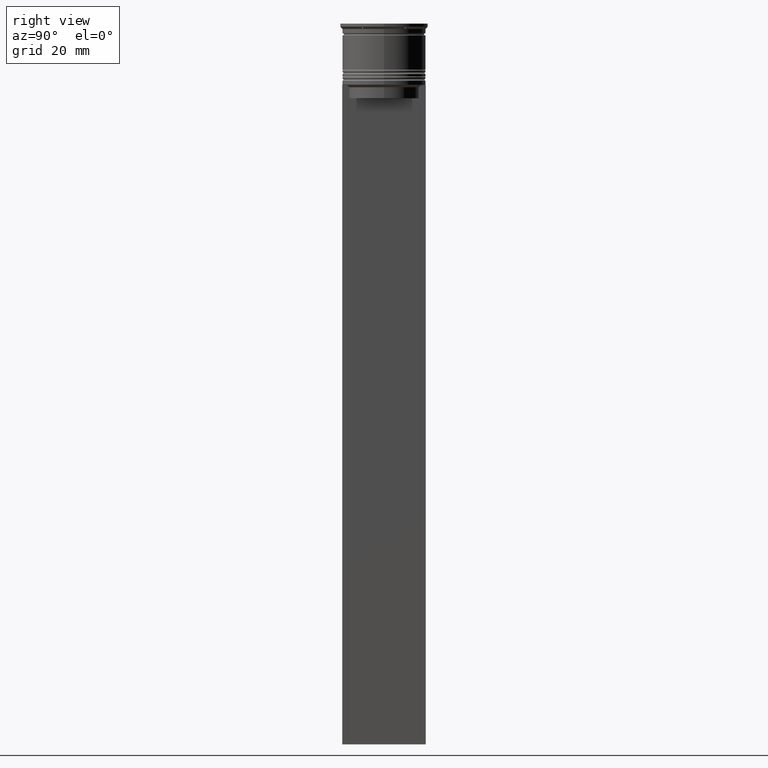
[diagram: clean part render]
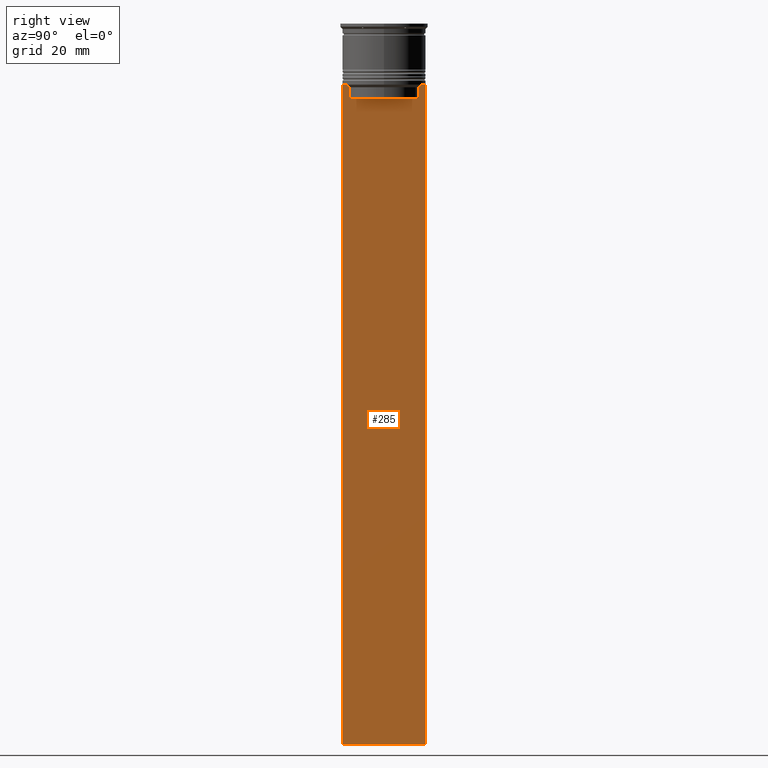
[diagram: same view with one face highlighted and labeled with its STEP entity id]
A machine part, right view. The second image highlights one B-rep face of the part: STEP entity #285.
In plain terms, the highlighted planar face has unit normal (-1, 0, 0).
Its self-contained STEP definition (entity closure, byte-faithful):
#47 = VERTEX_POINT ( 'NONE', #101 ) ;
#52 = CARTESIAN_POINT ( 'NONE',  ( 0.5000000000000000000, 9.499999999999998224, -14.00000000000000178 ) ) ;
#101 = CARTESIAN_POINT ( 'NONE',  ( 0.5000000000000000000, -8.385105843100605583, -14.00000000000000178 ) ) ;
#106 = AXIS2_PLACEMENT_3D ( 'NONE', #2226, #374, #180 ) ;
#124 = VERTEX_POINT ( 'NONE', #1781 ) ;
#174 = CARTESIAN_POINT ( 'NONE',  ( 0.5000000000000000000, 8.051152811434374001, -14.33334332653219079 ) ) ;
#180 = DIRECTION ( 'NONE',  ( 0.000000000000000000, 0.000000000000000000, 1.000000000000000000 ) ) ;
#181 = CARTESIAN_POINT ( 'NONE',  ( 0.5000000000000000000, -7.884161337770803080, -14.50000000000000000 ) ) ;
#191 = VECTOR ( 'NONE', #2163, 1000.000000000000000 ) ;
#221 = DIRECTION ( 'NONE',  ( 0.000000000000000000, 1.000000000000000000, 0.000000000000000000 ) ) ;
#285 = ADVANCED_FACE ( 'NONE', ( #1435 ), #2669, .F. ) ;
#300 = DIRECTION ( 'NONE',  ( -0.000000000000000000, -0.000000000000000000, 1.000000000000000000 ) ) ;
#314 = ORIENTED_EDGE ( 'NONE', *, *, #1823, .T. ) ;
#357 = B_SPLINE_CURVE_WITH_KNOTS ( 'NONE', 3,
 ( #181, #1024, #2281, #2461 ),
 .UNSPECIFIED., .F., .F.,
 ( 4, 4 ),
 ( 0.03673372442973153046, 0.03744389749832059688 ),
 .UNSPECIFIED. ) ;
#374 = DIRECTION ( 'NONE',  ( -1.000000000000000000, 0.000000000000000000, 0.000000000000000000 ) ) ;
#394 = ORIENTED_EDGE ( 'NONE', *, *, #1654, .T. ) ;
#416 = VECTOR ( 'NONE', #2347, 1000.000000000000000 ) ;
#422 = EDGE_LOOP ( 'NONE', ( #564, #2493, #858, #394, #314, #2152, #2313, #1434, #1390, #1732, #1136, #509 ) ) ;
#462 = LINE ( 'NONE', #1515, #1022 ) ;
#472 = CARTESIAN_POINT ( 'NONE',  ( 0.5000000000000000000, 7.884161337770803080, -17.00000000000000000 ) ) ;
#509 = ORIENTED_EDGE ( 'NONE', *, *, #1011, .T. ) ;
#553 = CARTESIAN_POINT ( 'NONE',  ( 0.5000000000000000000, -9.386692708297204035, -14.00000000000000178 ) ) ;
#564 = ORIENTED_EDGE ( 'NONE', *, *, #1604, .T. ) ;
#612 = DIRECTION ( 'NONE',  ( 0.000000000000000000, -1.000000000000000000, 0.000000000000000000 ) ) ;
#636 = CARTESIAN_POINT ( 'NONE',  ( 0.5000000000000000000, 8.385105843100605583, -14.00000000000000178 ) ) ;
#648 = CARTESIAN_POINT ( 'NONE',  ( 0.5000000000000000000, 7.884161337770803080, -14.50000000000000000 ) ) ;
#682 = VECTOR ( 'NONE', #1304, 1000.000000000000000 ) ;
#720 = B_SPLINE_CURVE_WITH_KNOTS ( 'NONE', 3,
 ( #636, #1661, #174, #648 ),
 .UNSPECIFIED., .F., .F.,
 ( 4, 4 ),
 ( 0.01426761478740281447, 0.01497538974438914448 ),
 .UNSPECIFIED. ) ;
#759 = EDGE_CURVE ( 'NONE', #2045, #940, #2555, .T. ) ;
#830 = VERTEX_POINT ( 'NONE', #52 ) ;
#858 = ORIENTED_EDGE ( 'NONE', *, *, #2661, .T. ) ;
#871 = DIRECTION ( 'NONE',  ( 0.000000000000000000, -1.000000000000000000, 0.000000000000000000 ) ) ;
#884 = VERTEX_POINT ( 'NONE', #2609 ) ;
#935 = VERTEX_POINT ( 'NONE', #936 ) ;
#936 = CARTESIAN_POINT ( 'NONE',  ( 0.5000000000000000000, 9.499999999999998224, -163.9999999999999716 ) ) ;
#940 = VERTEX_POINT ( 'NONE', #2427 ) ;
#1011 = EDGE_CURVE ( 'NONE', #830, #2541, #1254, .T. ) ;
#1022 = VECTOR ( 'NONE', #871, 1000.000000000000000 ) ;
#1024 = CARTESIAN_POINT ( 'NONE',  ( 0.5000000000000000000, -8.051152795888546265, -14.33334334204685057 ) ) ;
#1041 = EDGE_CURVE ( 'NONE', #124, #1100, #720, .T. ) ;
#1076 = DIRECTION ( 'NONE',  ( 0.000000000000000000, -1.000000000000000000, 0.000000000000000000 ) ) ;
#1100 = VERTEX_POINT ( 'NONE', #1620 ) ;
#1136 = ORIENTED_EDGE ( 'NONE', *, *, #1571, .F. ) ;
#1192 = LINE ( 'NONE', #1982, #2150 ) ;
#1193 = VERTEX_POINT ( 'NONE', #472 ) ;
#1224 = LINE ( 'NONE', #2498, #2325 ) ;
#1254 = LINE ( 'NONE', #2487, #1366 ) ;
#1285 = CARTESIAN_POINT ( 'NONE',  ( 0.5000000000000000000, -9.500000000000001776, -14.00000000000000178 ) ) ;
#1304 = DIRECTION ( 'NONE',  ( 0.000000000000000000, -1.000000000000000000, 0.000000000000000000 ) ) ;
#1366 = VECTOR ( 'NONE', #612, 1000.000000000000000 ) ;
#1390 = ORIENTED_EDGE ( 'NONE', *, *, #759, .T. ) ;
#1434 = ORIENTED_EDGE ( 'NONE', *, *, #2147, .T. ) ;
#1435 = FACE_OUTER_BOUND ( 'NONE', #422, .T. ) ;
#1465 = CARTESIAN_POINT ( 'NONE',  ( 0.5000000000000000000, 9.499999999999998224, 5.026297590440445440 ) ) ;
#1481 = EDGE_CURVE ( 'NONE', #1798, #47, #357, .T. ) ;
#1515 = CARTESIAN_POINT ( 'NONE',  ( 0.5000000000000000000, -9.500000000000001776, -14.00000000000000178 ) ) ;
#1525 = CARTESIAN_POINT ( 'NONE',  ( 0.5000000000000000000, -9.500000000000001776, 5.026297590440445440 ) ) ;
#1547 = VECTOR ( 'NONE', #221, 1000.000000000000000 ) ;
#1571 = EDGE_CURVE ( 'NONE', #830, #935, #2306, .T. ) ;
#1604 = EDGE_CURVE ( 'NONE', #2541, #124, #1889, .T. ) ;
#1620 = CARTESIAN_POINT ( 'NONE',  ( 0.5000000000000000000, 7.884161337770803080, -14.50000000000000000 ) ) ;
#1646 = LINE ( 'NONE', #2255, #1547 ) ;
#1654 = EDGE_CURVE ( 'NONE', #1193, #884, #2142, .T. ) ;
#1661 = CARTESIAN_POINT ( 'NONE',  ( 0.5000000000000000000, 8.218133718559618828, -14.16667606394327983 ) ) ;
#1681 = CARTESIAN_POINT ( 'NONE',  ( 0.5000000000000000000, -7.884161337770803080, 0.000000000000000000 ) ) ;
#1694 = VERTEX_POINT ( 'NONE', #553 ) ;
#1732 = ORIENTED_EDGE ( 'NONE', *, *, #2643, .T. ) ;
#1781 = CARTESIAN_POINT ( 'NONE',  ( 0.5000000000000000000, 8.385105843100605583, -14.00000000000000178 ) ) ;
#1798 = VERTEX_POINT ( 'NONE', #1971 ) ;
#1823 = EDGE_CURVE ( 'NONE', #884, #1798, #2506, .T. ) ;
#1840 = EDGE_CURVE ( 'NONE', #47, #1694, #462, .T. ) ;
#1889 = LINE ( 'NONE', #2550, #2452 ) ;
#1914 = CARTESIAN_POINT ( 'NONE',  ( 0.5000000000000000000, 7.899999999999994138, -17.00000000000000000 ) ) ;
#1971 = CARTESIAN_POINT ( 'NONE',  ( 0.5000000000000000000, -7.884161337770803080, -14.50000000000000000 ) ) ;
#1982 = CARTESIAN_POINT ( 'NONE',  ( 0.5000000000000000000, -9.500000000000001776, -14.00000000000000178 ) ) ;
#2004 = DIRECTION ( 'NONE',  ( 0.000000000000000000, -1.000000000000000000, 0.000000000000000000 ) ) ;
#2045 = VERTEX_POINT ( 'NONE', #1285 ) ;
#2142 = LINE ( 'NONE', #1914, #682 ) ;
#2147 = EDGE_CURVE ( 'NONE', #1694, #2045, #1192, .T. ) ;
#2150 = VECTOR ( 'NONE', #2004, 1000.000000000000000 ) ;
#2152 = ORIENTED_EDGE ( 'NONE', *, *, #1481, .T. ) ;
#2163 = DIRECTION ( 'NONE',  ( 0.000000000000000000, 0.000000000000000000, -1.000000000000000000 ) ) ;
#2215 = CARTESIAN_POINT ( 'NONE',  ( 0.5000000000000000000, 9.386692708297204035, -14.00000000000000178 ) ) ;
#2226 = CARTESIAN_POINT ( 'NONE',  ( 0.5000000000000000000, -9.500000000000001776, 5.026297590440445440 ) ) ;
#2255 = CARTESIAN_POINT ( 'NONE',  ( 0.5000000000000000000, -9.500000000000001776, -163.9999999999999716 ) ) ;
#2281 = CARTESIAN_POINT ( 'NONE',  ( 0.5000000000000000000, -8.218133703942523738, -14.16667607853445787 ) ) ;
#2282 = DIRECTION ( 'NONE',  ( 0.000000000000000000, 0.000000000000000000, -1.000000000000000000 ) ) ;
#2306 = LINE ( 'NONE', #1465, #416 ) ;
#2313 = ORIENTED_EDGE ( 'NONE', *, *, #1840, .T. ) ;
#2325 = VECTOR ( 'NONE', #2282, 1000.000000000000000 ) ;
#2347 = DIRECTION ( 'NONE',  ( 0.000000000000000000, 0.000000000000000000, -1.000000000000000000 ) ) ;
#2363 = VECTOR ( 'NONE', #300, 1000.000000000000000 ) ;
#2427 = CARTESIAN_POINT ( 'NONE',  ( 0.5000000000000000000, -9.500000000000001776, -163.9999999999999716 ) ) ;
#2452 = VECTOR ( 'NONE', #1076, 1000.000000000000000 ) ;
#2461 = CARTESIAN_POINT ( 'NONE',  ( 0.5000000000000000000, -8.385105843100605583, -14.00000000000000178 ) ) ;
#2487 = CARTESIAN_POINT ( 'NONE',  ( 0.5000000000000000000, -9.500000000000001776, -14.00000000000000178 ) ) ;
#2493 = ORIENTED_EDGE ( 'NONE', *, *, #1041, .T. ) ;
#2498 = CARTESIAN_POINT ( 'NONE',  ( 0.5000000000000000000, 7.884161337770803080, 0.000000000000000000 ) ) ;
#2506 = LINE ( 'NONE', #1681, #2363 ) ;
#2541 = VERTEX_POINT ( 'NONE', #2215 ) ;
#2550 = CARTESIAN_POINT ( 'NONE',  ( 0.5000000000000000000, -9.500000000000001776, -14.00000000000000178 ) ) ;
#2555 = LINE ( 'NONE', #1525, #191 ) ;
#2609 = CARTESIAN_POINT ( 'NONE',  ( 0.5000000000000000000, -7.884161337770803080, -17.00000000000000000 ) ) ;
#2643 = EDGE_CURVE ( 'NONE', #940, #935, #1646, .T. ) ;
#2661 = EDGE_CURVE ( 'NONE', #1100, #1193, #1224, .T. ) ;
#2669 = PLANE ( 'NONE',  #106 ) ;